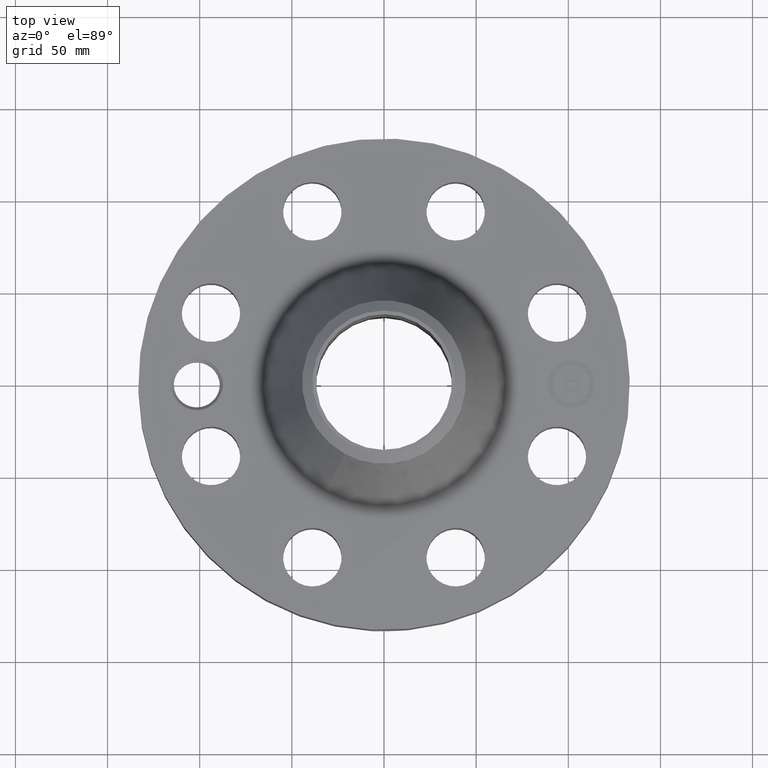
[diagram: clean part render]
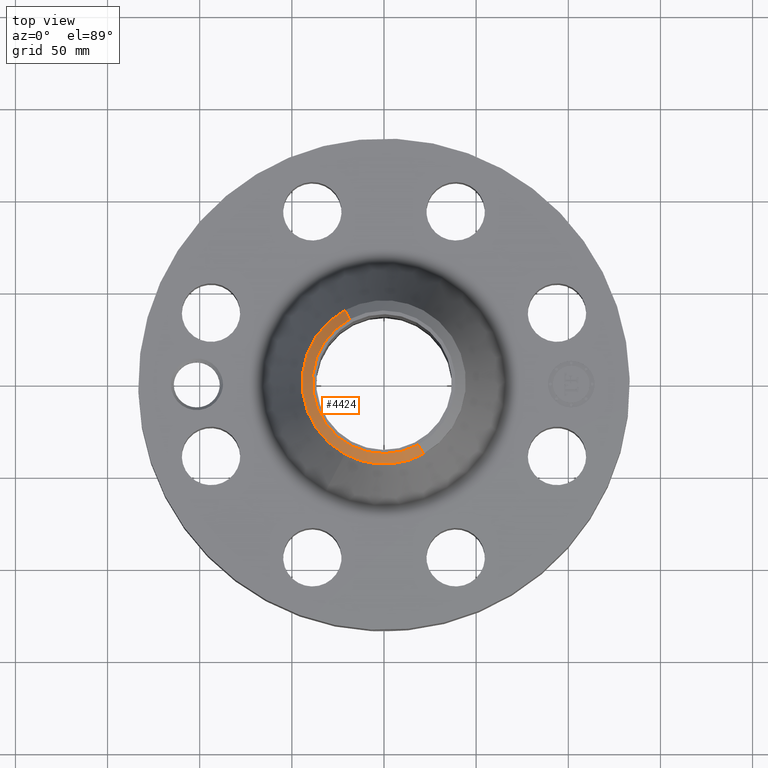
[diagram: same view with one face highlighted and labeled with its STEP entity id]
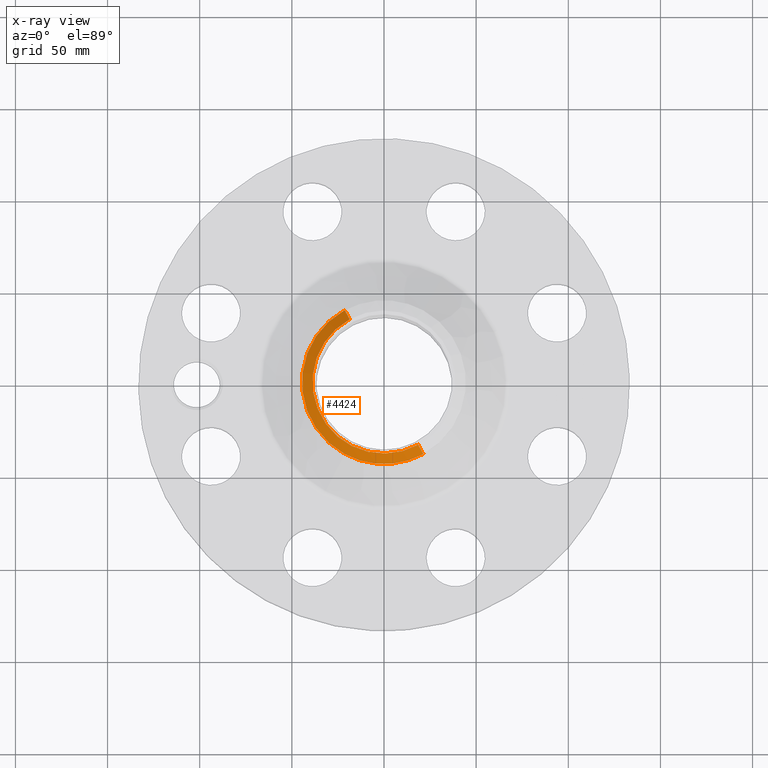
[diagram: x-ray of the same camera — body ghosted, the highlighted face saturated]
A machine part, top view. The second image highlights one B-rep face of the part: STEP entity #4424.
The next image is the same camera in x-ray: the body ghosted, the highlighted face saturated — about 0% of this face is hidden behind the body in this view.
In plain terms, the highlighted conical surface has half-angle 52.5 deg.
Its self-contained STEP definition (entity closure, byte-faithful):
#3250=AXIS2_PLACEMENT_3D('Circle Axis2P3D',#3248,#3249,$) ;
#3263=AXIS2_PLACEMENT_3D('Circle Axis2P3D',#3261,#3262,$) ;
#4053=AXIS2_PLACEMENT_3D('Circle Axis2P3D',#4051,#4052,$) ;
#4397=AXIS2_PLACEMENT_3D('Cone Axis2P3D',#4394,#4395,#4396) ;
#3231=CARTESIAN_POINT('Vertex',(-0.838994692561,-1.53576948331,4.7002213515)) ;
#3245=CARTESIAN_POINT('Vertex',(0.838994692561,-1.53576948331,4.7002213515)) ;
#3248=CARTESIAN_POINT('Axis2P3D Location',(0.,0.,4.7002213515)) ;
#3261=CARTESIAN_POINT('Axis2P3D Location',(0.,0.,4.7002213515)) ;
#3265=CARTESIAN_POINT('Vertex',(-0.838994692561,1.53576948331,4.7002213515)) ;
#4046=CARTESIAN_POINT('Vertex',(0.732917073389,-1.34159570387,4.87000000002)) ;
#4048=CARTESIAN_POINT('Vertex',(-0.732917073389,1.34159570387,4.87000000002)) ;
#4051=CARTESIAN_POINT('Axis2P3D Location',(0.,0.,4.87000000002)) ;
#4394=CARTESIAN_POINT('Axis2P3D Location',(0.,0.,4.87000000002)) ;
#4399=CARTESIAN_POINT('Line Origine',(-0.785955882975,1.43868259359,4.78511067576)) ;
#4404=CARTESIAN_POINT('Line Origine',(0.785955882975,-1.43868259359,4.78511067576)) ;
#3249=DIRECTION('Axis2P3D Direction',(0.,0.,-0.0393700787402)) ;
#3262=DIRECTION('Axis2P3D Direction',(0.,0.,-0.0393700787402)) ;
#4052=DIRECTION('Axis2P3D Direction',(0.,0.,-0.0393700787402)) ;
#4395=DIRECTION('Axis2P3D Direction',(-0.,-0.,-0.0393700787402)) ;
#4396=DIRECTION('Axis2P3D XDirection',(0.0188750212049,-0.0345504945626,0.)) ;
#4400=DIRECTION('Vector Direction',(-0.014974561121,0.02741075027,-0.023966985394)) ;
#4405=DIRECTION('Vector Direction',(0.014974561121,-0.02741075027,-0.023966985394)) ;
#4401=VECTOR('Line Direction',#4400,0.0393700787402) ;
#4406=VECTOR('Line Direction',#4405,0.0393700787402) ;
#4418=ORIENTED_EDGE('',*,*,#4408,.F.) ;
#4419=ORIENTED_EDGE('',*,*,#4055,.F.) ;
#4420=ORIENTED_EDGE('',*,*,#4403,.T.) ;
#4421=ORIENTED_EDGE('',*,*,#3267,.T.) ;
#4422=ORIENTED_EDGE('',*,*,#3252,.F.) ;
#4424=ADVANCED_FACE('PartBody',(#4423),#4398,.T.) ;
#3251=CIRCLE('generated circle',#3250,1.75000000001) ;
#3264=CIRCLE('generated circle',#3263,1.75000000001) ;
#4054=CIRCLE('generated circle',#4053,1.52874015749) ;
#4398=CONICAL_SURFACE('Cone',#4397,1.52874015749,0.916297857297) ;
#3252=EDGE_CURVE('',#3246,#3232,#3251,.T.) ;
#3267=EDGE_CURVE('',#3266,#3232,#3264,.F.) ;
#4055=EDGE_CURVE('',#4049,#4047,#4054,.F.) ;
#4403=EDGE_CURVE('',#4049,#3266,#4402,.T.) ;
#4408=EDGE_CURVE('',#4047,#3246,#4407,.T.) ;
#4417=EDGE_LOOP('',(#4418,#4419,#4420,#4421,#4422)) ;
#4423=FACE_OUTER_BOUND('',#4417,.T.) ;
#4402=LINE('Line',#4399,#4401) ;
#4407=LINE('Line',#4404,#4406) ;
#3232=VERTEX_POINT('',#3231) ;
#3246=VERTEX_POINT('',#3245) ;
#3266=VERTEX_POINT('',#3265) ;
#4047=VERTEX_POINT('',#4046) ;
#4049=VERTEX_POINT('',#4048) ;